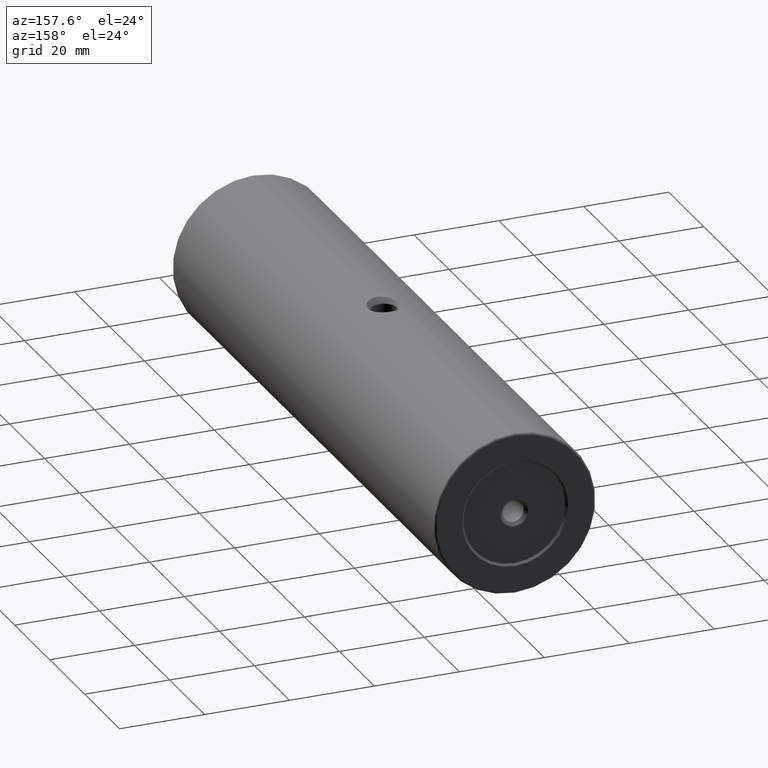
[diagram: clean part render]
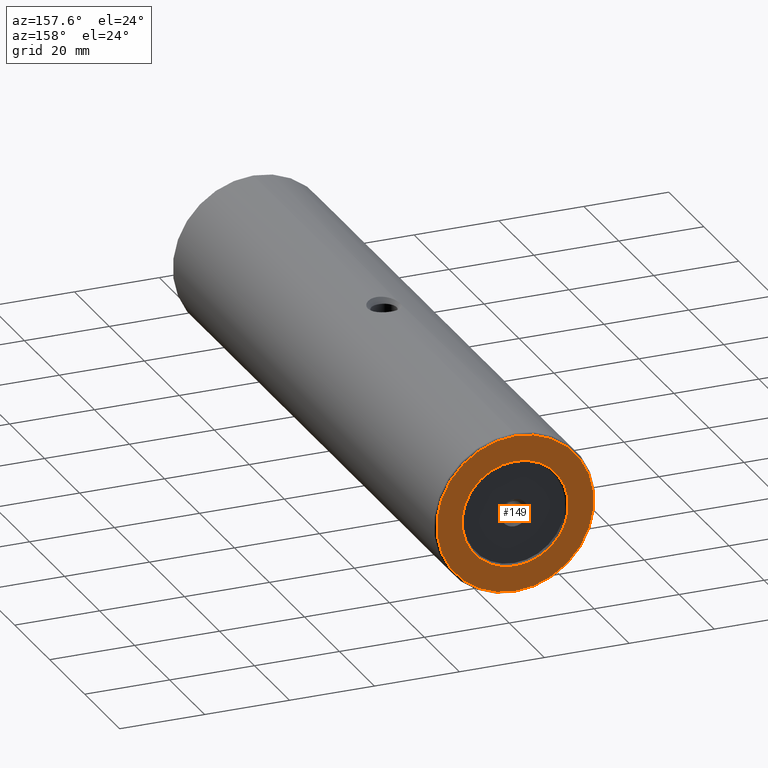
[diagram: same view with one face highlighted and labeled with its STEP entity id]
A machine part, auxiliary view. The second image highlights one B-rep face of the part: STEP entity #149.
In plain terms, the highlighted planar face has unit normal (0, 1, 0).
Its self-contained STEP definition (entity closure, byte-faithful):
#8 = PLANE ( 'NONE',  #506 ) ;
#12 = FACE_BOUND ( 'NONE', #412, .T. ) ;
#40 = CARTESIAN_POINT ( 'NONE',  ( -85.22679983354142053, 70.73866000832570933, 400.0000000000000000 ) ) ;
#53 = CARTESIAN_POINT ( 'NONE',  ( -85.22679983354142053, 70.73866000832570933, 400.0000000000000000 ) ) ;
#95 = FACE_OUTER_BOUND ( 'NONE', #353, .T. ) ;
#104 = ORIENTED_EDGE ( 'NONE', *, *, #267, .T. ) ;
#110 = VERTEX_POINT ( 'NONE', #638 ) ;
#139 = DIRECTION ( 'NONE',  ( 0.0000000000000000000, 0.0000000000000000000, 1.000000000000000000 ) ) ;
#149 = ADVANCED_FACE ( 'NONE', ( #12, #95 ), #8, .T. ) ;
#157 = CARTESIAN_POINT ( 'NONE',  ( -85.22679983354142053, 70.73866000832570933, 412.5000000000000568 ) ) ;
#176 = VERTEX_POINT ( 'NONE', #967 ) ;
#205 = CIRCLE ( 'NONE', #914, 12.50000000000001066 ) ;
#229 = CIRCLE ( 'NONE', #731, 12.50000000000001066 ) ;
#251 = ORIENTED_EDGE ( 'NONE', *, *, #311, .T. ) ;
#267 = EDGE_CURVE ( 'NONE', #110, #176, #522, .T. ) ;
#287 = DIRECTION ( 'NONE',  ( 0.0000000000000000000, 0.0000000000000000000, 1.000000000000000000 ) ) ;
#311 = EDGE_CURVE ( 'NONE', #176, #110, #991, .T. ) ;
#334 = DIRECTION ( 'NONE',  ( 0.0000000000000000000, -0.0000000000000000000, 1.000000000000000000 ) ) ;
#353 = EDGE_LOOP ( 'NONE', ( #251, #104 ) ) ;
#360 = EDGE_CURVE ( 'NONE', #784, #424, #205, .T. ) ;
#412 = EDGE_LOOP ( 'NONE', ( #737, #816 ) ) ;
#424 = VERTEX_POINT ( 'NONE', #781 ) ;
#441 = DIRECTION ( 'NONE',  ( 0.0000000000000000000, 0.0000000000000000000, 1.000000000000000000 ) ) ;
#506 = AXIS2_PLACEMENT_3D ( 'NONE', #566, #577, #334 ) ;
#522 = CIRCLE ( 'NONE', #864, 18.50000000000001776 ) ;
#566 = CARTESIAN_POINT ( 'NONE',  ( -85.22679983354142053, 70.73866000832570933, 400.0000000000000000 ) ) ;
#577 = DIRECTION ( 'NONE',  ( 0.0000000000000000000, 1.000000000000000000, 0.0000000000000000000 ) ) ;
#598 = DIRECTION ( 'NONE',  ( 0.0000000000000000000, 0.0000000000000000000, 1.000000000000000000 ) ) ;
#638 = CARTESIAN_POINT ( 'NONE',  ( -85.22679983354142053, 70.73866000832570933, 381.5000000000000000 ) ) ;
#688 = AXIS2_PLACEMENT_3D ( 'NONE', #53, #829, #598 ) ;
#731 = AXIS2_PLACEMENT_3D ( 'NONE', #773, #841, #287 ) ;
#737 = ORIENTED_EDGE ( 'NONE', *, *, #360, .F. ) ;
#773 = CARTESIAN_POINT ( 'NONE',  ( -85.22679983354142053, 70.73866000832570933, 400.0000000000000000 ) ) ;
#774 = DIRECTION ( 'NONE',  ( 0.0000000000000000000, 1.000000000000000000, 0.0000000000000000000 ) ) ;
#781 = CARTESIAN_POINT ( 'NONE',  ( -85.22679983354142053, 70.73866000832570933, 387.5000000000000000 ) ) ;
#784 = VERTEX_POINT ( 'NONE', #157 ) ;
#786 = CARTESIAN_POINT ( 'NONE',  ( -85.22679983354142053, 70.73866000832570933, 400.0000000000000000 ) ) ;
#791 = EDGE_CURVE ( 'NONE', #424, #784, #229, .T. ) ;
#816 = ORIENTED_EDGE ( 'NONE', *, *, #791, .F. ) ;
#829 = DIRECTION ( 'NONE',  ( 0.0000000000000000000, 1.000000000000000000, 0.0000000000000000000 ) ) ;
#841 = DIRECTION ( 'NONE',  ( 0.0000000000000000000, 1.000000000000000000, 0.0000000000000000000 ) ) ;
#864 = AXIS2_PLACEMENT_3D ( 'NONE', #40, #976, #441 ) ;
#914 = AXIS2_PLACEMENT_3D ( 'NONE', #786, #774, #139 ) ;
#967 = CARTESIAN_POINT ( 'NONE',  ( -85.22679983354142053, 70.73866000832570933, 418.5000000000000568 ) ) ;
#976 = DIRECTION ( 'NONE',  ( 0.0000000000000000000, 1.000000000000000000, 0.0000000000000000000 ) ) ;
#991 = CIRCLE ( 'NONE', #688, 18.50000000000001776 ) ;